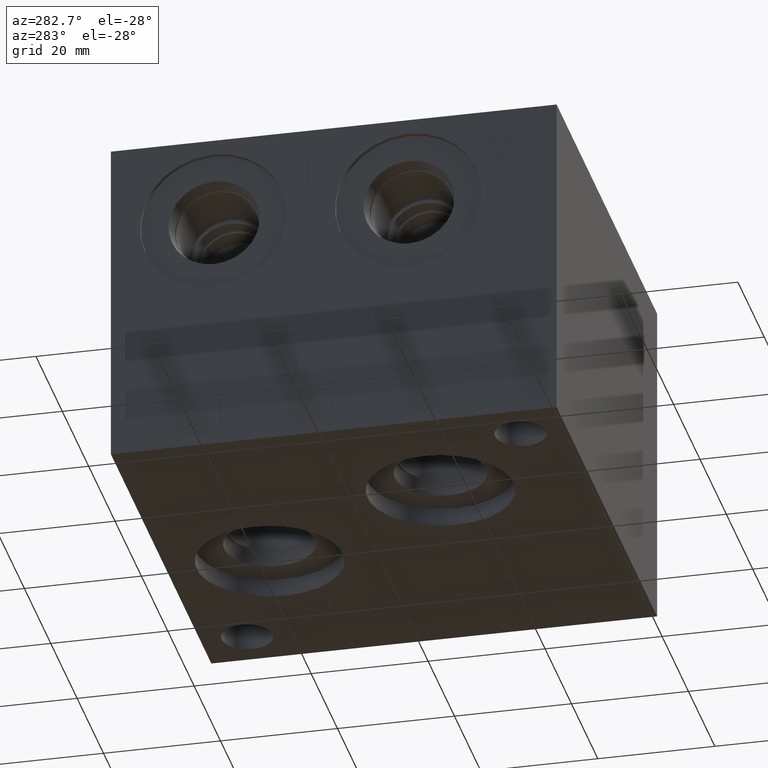
[diagram: clean part render]
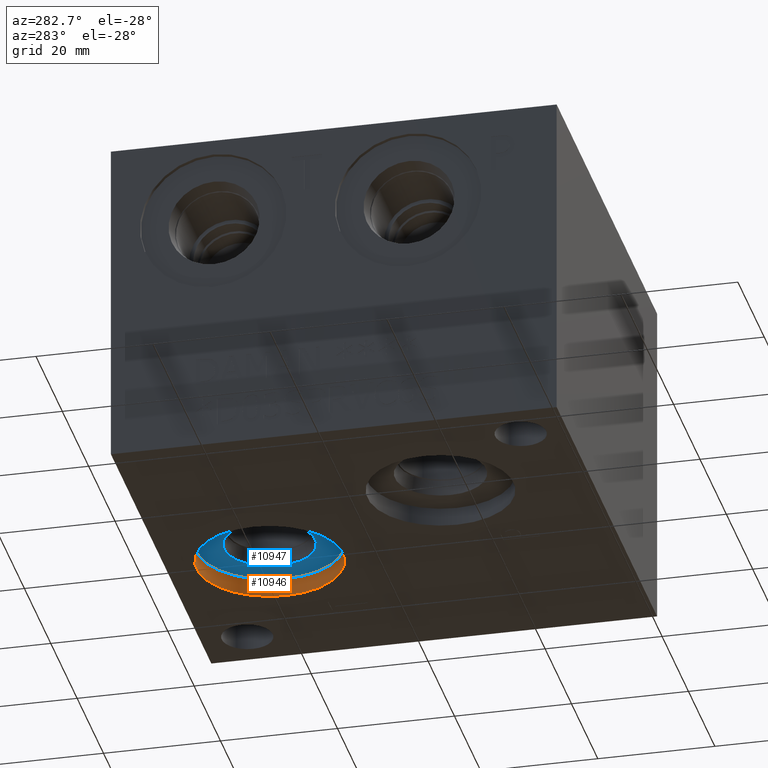
[diagram: same view with the hole feature highlighted: cylindrical wall and planar end face, labeled with their STEP entity ids]
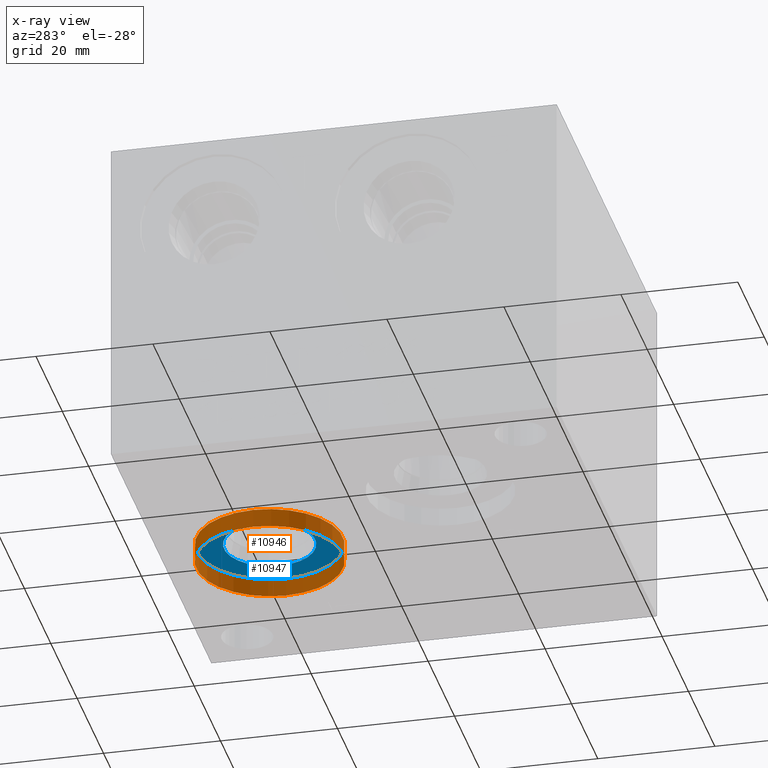
[diagram: x-ray of the same camera — body ghosted, the hole faces saturated]
A machine part, auxiliary view. The highlighted faces form one hole feature of diameter 25.019 mm: the cylindrical wall (entity #10946, orange) and its adjacent planar end face (entity #10947, blue) — they share a circular edge in the B-rep.
The next image is the same camera in x-ray (body ghosted, the hole faces saturated) — the bore reads through the body.
Wall:
#61=CYLINDRICAL_SURFACE('',#11405,12.5095);
#108=CIRCLE('',#11071,12.5095);
#109=CIRCLE('',#11072,12.5095);
#147=CIRCLE('',#11406,12.5095);
#148=CIRCLE('',#11407,12.5095);
#1164=FACE_OUTER_BOUND('',#1776,.T.);
#1776=EDGE_LOOP('',(#9359,#9360,#9361,#9362,#9363,#9364));
#2829=LINE('',#18654,#3832);
#3832=VECTOR('',#13287,12.5095);
#4276=VERTEX_POINT('',#14100);
#4277=VERTEX_POINT('',#14101);
#5109=VERTEX_POINT('',#18653);
#5110=VERTEX_POINT('',#18655);
#5338=EDGE_CURVE('',#4276,#4277,#108,.T.);
#5339=EDGE_CURVE('',#4277,#4276,#109,.T.);
#6579=EDGE_CURVE('',#4277,#5109,#2829,.T.);
#6580=EDGE_CURVE('',#5109,#5110,#147,.T.);
#6581=EDGE_CURVE('',#5110,#5109,#148,.T.);
#9359=ORIENTED_EDGE('',*,*,#5338,.F.);
#9360=ORIENTED_EDGE('',*,*,#5339,.F.);
#9361=ORIENTED_EDGE('',*,*,#6579,.T.);
#9362=ORIENTED_EDGE('',*,*,#6580,.T.);
#9363=ORIENTED_EDGE('',*,*,#6581,.T.);
#9364=ORIENTED_EDGE('',*,*,#6579,.F.);
#10946=ADVANCED_FACE('',(#1164),#61,.F.);
#11071=AXIS2_PLACEMENT_3D('',#14102,#11728,#11729);
#11072=AXIS2_PLACEMENT_3D('',#14103,#11730,#11731);
#11405=AXIS2_PLACEMENT_3D('',#18652,#13285,#13286);
#11406=AXIS2_PLACEMENT_3D('',#18656,#13288,#13289);
#11407=AXIS2_PLACEMENT_3D('',#18657,#13290,#13291);
#11728=DIRECTION('center_axis',(0.,0.,1.));
#11729=DIRECTION('ref_axis',(1.,0.,0.));
#11730=DIRECTION('center_axis',(0.,0.,1.));
#11731=DIRECTION('ref_axis',(1.,0.,0.));
#13285=DIRECTION('center_axis',(0.,0.,1.));
#13286=DIRECTION('ref_axis',(1.,0.,0.));
#13287=DIRECTION('',(0.,0.,1.));
#13288=DIRECTION('center_axis',(0.,0.,1.));
#13289=DIRECTION('ref_axis',(1.,0.,0.));
#13290=DIRECTION('center_axis',(0.,0.,1.));
#13291=DIRECTION('ref_axis',(1.,0.,0.));
#14100=CARTESIAN_POINT('',(55.3847,58.7248,0.));
#14101=CARTESIAN_POINT('',(30.3657,58.7248,0.));
#14102=CARTESIAN_POINT('Origin',(42.8752,58.7248,0.));
#14103=CARTESIAN_POINT('Origin',(42.8752,58.7248,0.));
#18652=CARTESIAN_POINT('Origin',(42.8752,58.7248,1.5875));
#18653=CARTESIAN_POINT('',(30.3657,58.7248,3.175));
#18654=CARTESIAN_POINT('',(30.3657,58.7248,1.5875));
#18655=CARTESIAN_POINT('',(55.3847,58.7248,3.175));
#18656=CARTESIAN_POINT('Origin',(42.8752,58.7248,3.175));
#18657=CARTESIAN_POINT('Origin',(42.8752,58.7248,3.175));
End face:
#147=CIRCLE('',#11406,12.5095);
#148=CIRCLE('',#11407,12.5095);
#149=CIRCLE('',#11409,7.7978);
#150=CIRCLE('',#11410,7.7978);
#358=FACE_BOUND('',#1778,.T.);
#677=PLANE('',#11408);
#1165=FACE_OUTER_BOUND('',#1777,.T.);
#1777=EDGE_LOOP('',(#9365,#9366));
#1778=EDGE_LOOP('',(#9367,#9368));
#5109=VERTEX_POINT('',#18653);
#5110=VERTEX_POINT('',#18655);
#5111=VERTEX_POINT('',#18659);
#5112=VERTEX_POINT('',#18660);
#6580=EDGE_CURVE('',#5109,#5110,#147,.T.);
#6581=EDGE_CURVE('',#5110,#5109,#148,.T.);
#6582=EDGE_CURVE('',#5111,#5112,#149,.T.);
#6583=EDGE_CURVE('',#5112,#5111,#150,.T.);
#9365=ORIENTED_EDGE('',*,*,#6581,.F.);
#9366=ORIENTED_EDGE('',*,*,#6580,.F.);
#9367=ORIENTED_EDGE('',*,*,#6582,.T.);
#9368=ORIENTED_EDGE('',*,*,#6583,.T.);
#10947=ADVANCED_FACE('',(#1165,#358),#677,.F.);
#11406=AXIS2_PLACEMENT_3D('',#18656,#13288,#13289);
#11407=AXIS2_PLACEMENT_3D('',#18657,#13290,#13291);
#11408=AXIS2_PLACEMENT_3D('',#18658,#13292,#13293);
#11409=AXIS2_PLACEMENT_3D('',#18661,#13294,#13295);
#11410=AXIS2_PLACEMENT_3D('',#18662,#13296,#13297);
#13288=DIRECTION('center_axis',(0.,0.,1.));
#13289=DIRECTION('ref_axis',(1.,0.,0.));
#13290=DIRECTION('center_axis',(0.,0.,1.));
#13291=DIRECTION('ref_axis',(1.,0.,0.));
#13292=DIRECTION('center_axis',(0.,0.,1.));
#13293=DIRECTION('ref_axis',(1.,0.,0.));
#13294=DIRECTION('center_axis',(0.,0.,1.));
#13295=DIRECTION('ref_axis',(1.,0.,0.));
#13296=DIRECTION('center_axis',(0.,0.,1.));
#13297=DIRECTION('ref_axis',(1.,0.,0.));
#18653=CARTESIAN_POINT('',(30.3657,58.7248,3.175));
#18655=CARTESIAN_POINT('',(55.3847,58.7248,3.175));
#18656=CARTESIAN_POINT('Origin',(42.8752,58.7248,3.175));
#18657=CARTESIAN_POINT('Origin',(42.8752,58.7248,3.175));
#18658=CARTESIAN_POINT('Origin',(50.673,58.7248,3.175));
#18659=CARTESIAN_POINT('',(50.673,58.7248,3.175));
#18660=CARTESIAN_POINT('',(35.0774,58.7248,3.175));
#18661=CARTESIAN_POINT('Origin',(42.8752,58.7248,3.175));
#18662=CARTESIAN_POINT('Origin',(42.8752,58.7248,3.175));